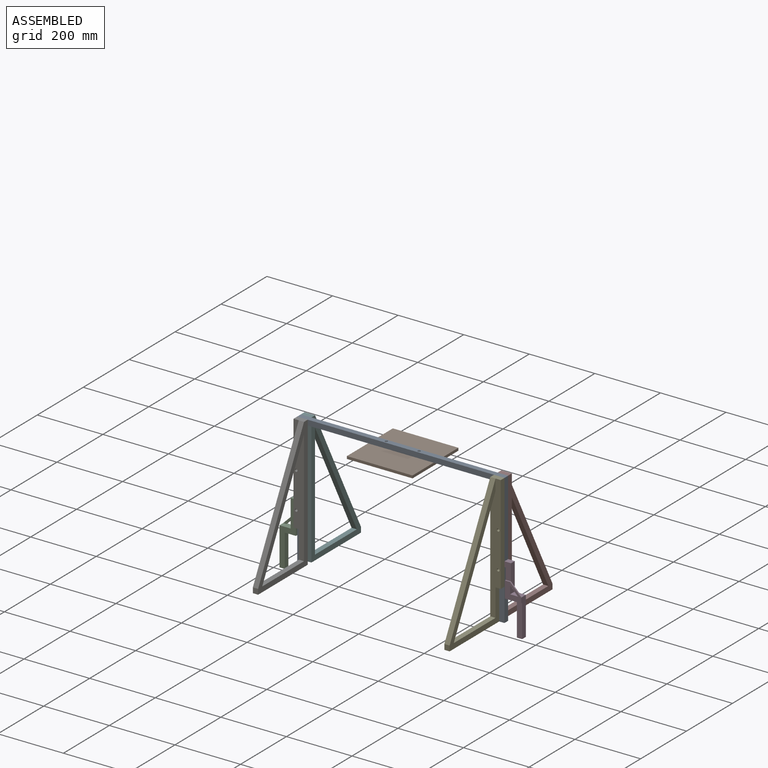
[diagram: assembled view]
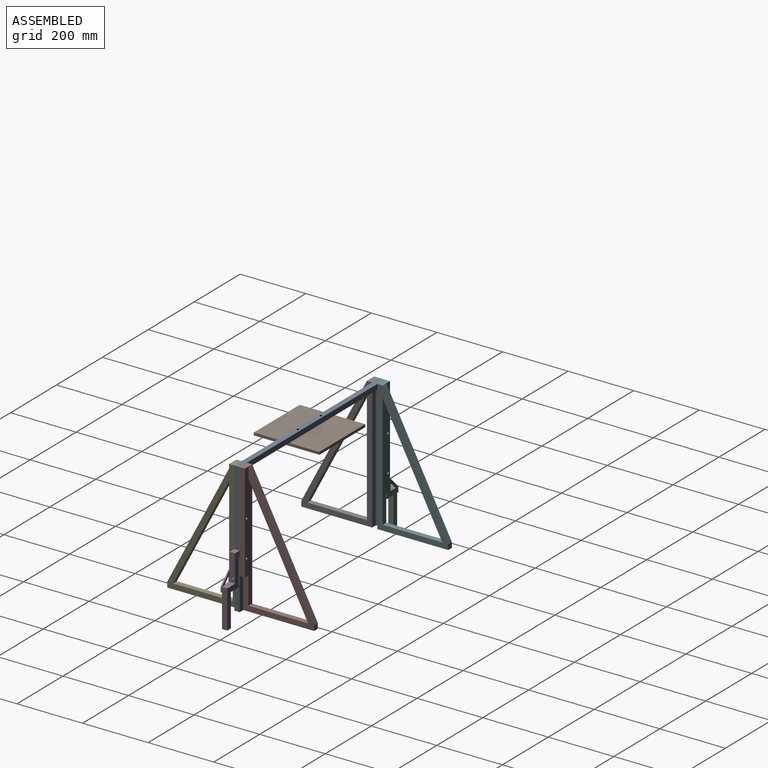
[diagram: assembled view, second angle]
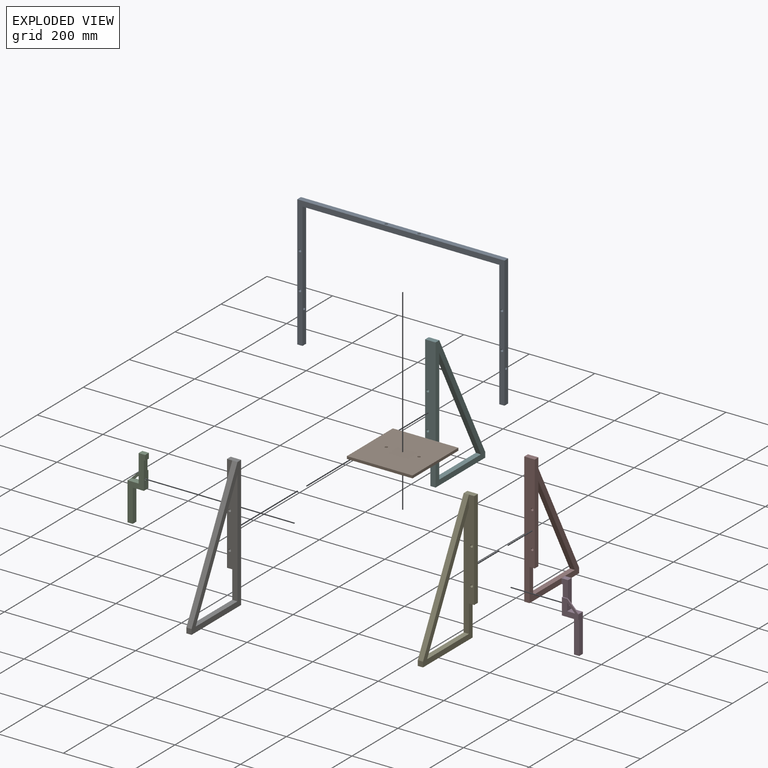
[diagram: exploded view]
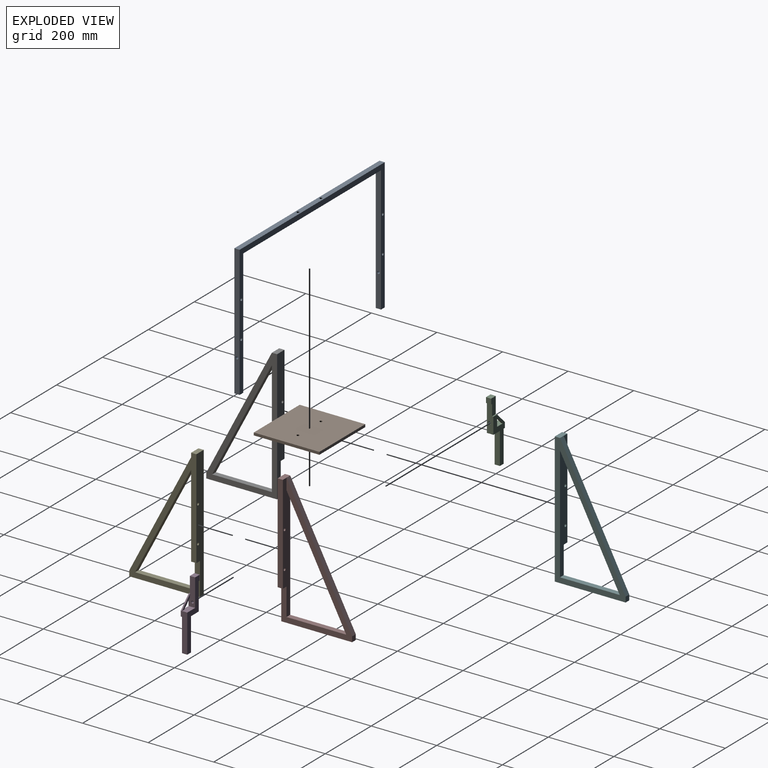
[diagram: exploded view, second angle]
FCSTD DOCUMENT  (FreeCAD 1.0R39285 (Git))
Label: Base-Frame-Assembly
License: All rights reserved
objects: App::Link×8, App::FeaturePython×8, Assembly::JointGroup×1, Assembly::AssemblyObject×1, TechDraw::DrawProjGroupItem×1
EXTERNAL_REF file=Supporting-Frame.FCStd obj=Body
EXTERNAL_REF file=Supporting-Plate.FCStd obj=Body
EXTERNAL_REF file=Supporting-Clamp.FCStd obj=Body
EXTERNAL_REF file=Supporting-A-Subframe.FCStd obj=Body
EXTERNAL_REF file=Supporting-A-Subframe-Flipped.FCStd obj=Body

FEATURE [App::Link] Body
  LinkedObject = -> <external Supporting-Frame.FCStd>#Body
FEATURE [App::FeaturePython] GroundedJoint  # Assembly grounded joint (typed FeaturePython)
  ObjectToGround = -> Body
FEATURE [App::Link] Body001
  LinkPlacement = pos=(0,-8,276) rot=(0,0,1;0rad)
  LinkedObject = -> <external Supporting-Plate.FCStd>#Body
  Placement = pos=(0,-8,276) rot=(0,0,1;0rad)
FEATURE [App::Link] Body003
  LinkPlacement = pos=(-320,-16,-30) rot=(0,0,1;3.14159rad)
  LinkedObject = -> <external Supporting-Clamp.FCStd>#Body
  Placement = pos=(-320,-16,-30) rot=(0,0,1;3.14159rad)
FEATURE [App::Link] Body004
  LinkPlacement = pos=(320,2.8e-15,-30) rot=(0,0,1;0rad)
  LinkedObject = -> <external Supporting-Clamp.FCStd>#Body
  Placement = pos=(320,2.8e-15,-30) rot=(0,0,1;0rad)
FEATURE [App::Link] Body005
  LinkPlacement = pos=(300,-16,9.6e-15) rot=(0,0,1;3.14159rad)
  LinkedObject = -> <external Supporting-A-Subframe.FCStd>#Body
  Placement = pos=(300,-16,9.6e-15) rot=(0,0,1;3.14159rad)
FEATURE [App::Link] Body006
  LinkPlacement = pos=(-300,2.51e-14,-3.59e-14) rot=(0,0,1;0rad)
  LinkedObject = -> <external Supporting-A-Subframe.FCStd>#Body
  Placement = pos=(-300,2.51e-14,-3.59e-14) rot=(0,0,1;0rad)
FEATURE [App::FeaturePython] Joint  label="Fixed"  # Assembly joint (typed FeaturePython)
  Activated = true
  AngleMax = 0
  AngleMin = 0
  Detach1 = false
  Detach2 = false
  Distance = 0
  Distance2 = 0
  EnableAngleMax = false
  EnableAngleMin = false
  EnableLengthMax = false
  EnableLengthMin = false
  JointType = 0 (Fixed)
  LengthMax = 0
  LengthMin = 0
  Offset2 = pos=(0,0,0) rot=(0,0,1;3.14159rad)
  Placement1 = pos=(-50,0,8) rot=(0,0,1;0rad)
  Placement2 = pos=(-50,-8,284) rot=(0,0,1;0rad)
  Reference1 = -> Assembly [Body001.Edge17,Body001.Edge17]
  Reference2 = -> Assembly [Body.Edge33,Body.Edge33]
FEATURE [App::FeaturePython] Joint001  label="Fixed001"  # Assembly joint (typed FeaturePython)
  Activated = true
  AngleMax = 0
  AngleMin = 0
  Detach1 = false
  Detach2 = false
  Distance = 0
  Distance2 = 0
  EnableAngleMax = false
  EnableAngleMin = false
  EnableLengthMax = false
  EnableLengthMin = false
  JointType = 0 (Fixed)
  LengthMax = 0
  LengthMin = 0
  Offset2 = pos=(0,0,-4) rot=(0,0,1;3.14159rad)
  Placement1 = pos=(316,-8,1.403e-13) rot=(0.707107,0,-0.707107;3.14159rad)
  Placement2 = pos=(-4,-8,30) rot=(0,-1,0;4.71239rad)
  Reference1 = -> Assembly [Body.Edge12,Body.Edge12]
  Reference2 = -> Assembly [Body004.Edge23,Body004.Edge23]
FEATURE [App::FeaturePython] Joint002  label="Fixed002"  # Assembly joint (typed FeaturePython)
  Activated = true
  AngleMax = 0
  AngleMin = 0
  Detach1 = false
  Detach2 = false
  Distance = 0
  Distance2 = 0
  EnableAngleMax = false
  EnableAngleMin = false
  EnableLengthMax = false
  EnableLengthMin = false
  JointType = 0 (Fixed)
  LengthMax = 0
  LengthMin = 0
  Offset2 = pos=(0,0,-4) rot=(0,0,1;3.14159rad)
  Placement1 = pos=(-316,-8,-1.8e-15) rot=(0.707107,0,-0.707107;3.14159rad)
  Placement2 = pos=(-4,-8,30) rot=(0,1,0;1.5708rad)
  Reference1 = -> Assembly [Body.Edge41,Body.Edge41]
  Reference2 = -> Assembly [Body003.Edge23,Body003.Edge23]
FEATURE [App::FeaturePython] Joint003  label="Fixed003"  # Assembly joint (typed FeaturePython)
  Activated = true
  AngleMax = 0
  AngleMin = 0
  Detach1 = false
  Detach2 = false
  Distance = 0
  Distance2 = 0
  EnableAngleMax = false
  EnableAngleMin = false
  EnableLengthMax = false
  EnableLengthMin = false
  JointType = 0 (Fixed)
  LengthMax = 0
  LengthMin = 0
  Offset2 = pos=(0,0,0) rot=(0,0,-1;1.5708rad)
  Placement1 = pos=(308,-16,160) rot=(-1,0,0;1.5708rad)
  Placement2 = pos=(-8,5.15e-14,160) rot=(0,-0.707107,-0.707107;3.14159rad)
  Reference1 = -> Assembly [Body.Edge30,Body.Edge30]
  Reference2 = -> Assembly [Body005.Edge25,Body005.Edge25]
FEATURE [App::FeaturePython] Joint004  label="Fixed004"  # Assembly joint (typed FeaturePython)
  Activated = true
  AngleMax = 0
  AngleMin = 0
  Detach1 = false
  Detach2 = false
  Distance = 0
  Distance2 = 0
  EnableAngleMax = false
  EnableAngleMin = false
  EnableLengthMax = false
  EnableLengthMin = false
  JointType = 0 (Fixed)
  LengthMax = 0
  LengthMin = 0
  Offset2 = pos=(0,0,0) rot=(0,0,1;1.5708rad)
  Placement1 = pos=(-308,4.3e-15,160) rot=(-1,0,0;1.5708rad)
  Placement2 = pos=(-8,5.15e-14,160) rot=(1,0,0;4.71239rad)
  Reference1 = -> Assembly [Body.Edge19,Body.Edge19]
  Reference2 = -> Assembly [Body006.Edge25,Body006.Edge25]
FEATURE [App::Link] Body007
  LinkPlacement = pos=(-284,-16,-2.04e-14) rot=(0,0,1;3.14159rad)
  LinkedObject = -> <external Supporting-A-Subframe-Flipped.FCStd>#Body
  Placement = pos=(-284,-16,-2.04e-14) rot=(0,0,1;3.14159rad)
FEATURE [App::Link] Body008
  LinkPlacement = pos=(284,8.2e-15,-1.02e-14) rot=(0,0,1;0rad)
  LinkedObject = -> <external Supporting-A-Subframe-Flipped.FCStd>#Body
  Placement = pos=(284,8.2e-15,-1.02e-14) rot=(0,0,1;0rad)
FEATURE [App::FeaturePython] Joint005  label="Fixed005"  # Assembly joint (typed FeaturePython)
  Activated = true
  AngleMax = 0
  AngleMin = 0
  Detach1 = false
  Detach2 = false
  Distance = 0
  Distance2 = 0
  EnableAngleMax = false
  EnableAngleMin = false
  EnableLengthMax = false
  EnableLengthMin = false
  JointType = 0 (Fixed)
  LengthMax = 0
  LengthMin = 0
  Offset2 = pos=(0,0,0) rot=(0,0,1;1.5708rad)
  Placement1 = pos=(24,0,50) rot=(0.57735,0.57735,-0.57735;2.0944rad)
  Placement2 = pos=(-308,-16,50) rot=(-0.57735,0.57735,0.57735;2.0944rad)
  Reference1 = -> Assembly [Body007.Edge26,Body007.Edge26]
  Reference2 = -> Assembly [Body.Edge27,Body.Edge27]
FEATURE [App::FeaturePython] Joint006  label="Fixed006"  # Assembly joint (typed FeaturePython)
  Activated = true
  AngleMax = 0
  AngleMin = 0
  Detach1 = false
  Detach2 = false
  Distance = 0
  Distance2 = 0
  EnableAngleMax = false
  EnableAngleMin = false
  EnableLengthMax = false
  EnableLengthMin = false
  JointType = 0 (Fixed)
  LengthMax = 0
  LengthMin = 0
  Offset2 = pos=(0,0,0) rot=(0,0,1;1.5708rad)
  Placement1 = pos=(24,0,50) rot=(0.57735,0.57735,-0.57735;2.0944rad)
  Placement2 = pos=(308,2.87e-14,50) rot=(-0.57735,0.57735,0.57735;2.0944rad)
  Reference1 = -> Assembly [Body008.Edge26,Body008.Edge26]
  Reference2 = -> Assembly [Body.Edge20,Body.Edge20]
FEATURE [Assembly::JointGroup] Joints
  Group = -> [GroundedJoint,Joint,Joint001,Joint002,Joint003,Joint004,Joint005,Joint006]
FEATURE [Assembly::AssemblyObject] Assembly
  Group = -> [Joints,Body,GroundedJoint,Body001,Body003,Body004,Body005,Body006,Joint,Joint001,Joint002,Joint003,Joint004,Body007,Body008,Joint005,Joint006]
  Origin = -> Origin
  Type = Assembly
FEATURE [TechDraw::DrawProjGroupItem] ProjItem  label="FrontBottomLeft"
  CoarseView = false
  Direction = (0.57735,0.57735,-0.57735)
  Focus = 100
  HardHidden = false
  IsoCount = 0
  IsoHidden = false
  IsoVisible = false
  LockPosition = false
  Perspective = false
  Rotation = 0
  RotationVector = (1,0,0)
  ScaleType = 0
  ScrubCount = 1
  SeamHidden = false
  SeamVisible = false
  SmoothHidden = false
  SmoothVisible = true
  Source = -> [Assembly]
  Type = 8
  X = 331.13
  XDirection = (-0.707107,0.707107,0)
  Y = 76.0632

RESOLVED EXTERNAL PARTS (link-assembly join: the EXTERNAL_REF files above that resolve inside this repo's crawl, each included once):
---- part Supporting-A-Subframe-Flipped.FCStd = doc fcstd_35f09016f2fb ----
FCSTD DOCUMENT  (FreeCAD 1.0R39285 (Git))
Label: Supporting-A-Subframe-Flipped
License: All rights reserved
objects: Sketcher::SketchObject×3, PartDesign::Pad×2, PartDesign::Pocket×1, PartDesign::Body×1
note: 16 computed .brp shape members not serialized (recipe doc carries the construction recipe); baked Part::Feature solids carry a one-line shape summary decoded from their .brp

FEATURE [Sketcher::SketchObject] Sketch
  ArcFitTolerance = 1e-06
  AttachmentSupport = -> [YZ_Plane]
  FullyConstrained = true
  MakeInternals = false
  MapMode = 5
  Placement = pos=(0,0,0) rot=(0.57735,0.57735,0.57735;2.0944rad)
  sketch-geometry (12):
    g0: LineSegment StartX=0 StartY=0 StartZ=0 EndX=0 EndY=-100 EndZ=0
    g1: LineSegment StartX=0 StartY=-100 StartZ=0 EndX=16 EndY=-100 EndZ=0
    g2: LineSegment StartX=16 StartY=-100 StartZ=0 EndX=216 EndY=-100 EndZ=0
    g3: LineSegment StartX=216 StartY=-100 StartZ=0 EndX=216 EndY=-84 EndZ=0
    g4: LineSegment StartX=0 StartY=0 StartZ=0 EndX=0 EndY=300 EndZ=0
    g5: LineSegment StartX=0 StartY=300 StartZ=0 EndX=16 EndY=300 EndZ=0
    g6: LineSegment StartX=16 StartY=300 StartZ=0 EndX=216 EndY=-84 EndZ=0
    g7: LineSegment [constr] StartX=16 StartY=300 StartZ=0 EndX=16 EndY=-100 EndZ=0
    g8: LineSegment [constr] StartX=216 StartY=-84 StartZ=0 EndX=0 EndY=-84 EndZ=0
    g9: LineSegment StartX=16 StartY=265.363 StartZ=0 EndX=197.96 EndY=-84 EndZ=0
    g10: LineSegment StartX=16 StartY=265.363 StartZ=0 EndX=16 EndY=-84 EndZ=0
    g11: LineSegment StartX=16 StartY=-84 StartZ=0 EndX=197.96 EndY=-84 EndZ=0
  constraints (34):
    c: Distance(g0) = 100
    c: Coincident(g0,g-1)
    c: PointOnObject(g0,g-2)
    c: Distance(g1) = 16
    c: Coincident(g1,g0)
    c: Horizontal(g1)
    c: Distance(g2) = 200
    c: Coincident(g2,g1)
    c: Horizontal(g2)
    c: Distance(g3) = 16
    c: Coincident(g3,g2)
    c: Vertical(g3)
    c: Distance(g4) = 300
    c: Coincident(g4,g0)
    c: PointOnObject(g4,g-2)
    c: Distance(g5) = 16
    c: Coincident(g5,g4)
    c: Horizontal(g5)
    c: Coincident(g6,g5)
    c: Coincident(g6,g3)
    c: Coincident(g7,g5)
    c: Coincident(g7,g1)
    c: Coincident(g8,g3)
    c: Horizontal(g8)
    c: PointOnObject(g8,g0)
    c: Parallel(g9,g6)
    c: PointOnObject(g9,g7)
    c: PointOnObject(g9,g8)
    c: Distance(g6,g9) = 16
    c: Coincident(g10,g9)
    c: PointOnObject(g10,g8)
    c: Vertical(g10)
    c: Coincident(g11,g10)
    c: Coincident(g11,g9)
FEATURE [PartDesign::Pad] Pad
  Direction = (1,0,0)
  Length = 16
  Length2 = 10
  Placement = pos=(0,0,0) rot=(1,1,1;2.0944rad)
  Profile = -> Sketch
  ReferenceAxis = -> Sketch [N_Axis]
  Refine = true
  Suppressed = false
  Type = 0
FEATURE [Sketcher::SketchObject] Sketch001
  ArcFitTolerance = 1e-06
  AttachmentSupport = -> [Pad]
  FullyConstrained = true
  MakeInternals = false
  MapMode = 5
  Placement = pos=(-2.93e-14,0,0) rot=(0.57735,0.57735,-0.57735;4.18879rad)
  sketch-geometry (4):
    g0: LineSegment StartX=0 StartY=0 StartZ=0 EndX=16 EndY=0 EndZ=0
    g1: LineSegment StartX=16 StartY=0 StartZ=0 EndX=16 EndY=-300 EndZ=0
    g2: LineSegment StartX=16 StartY=-300 StartZ=0 EndX=0 EndY=-300 EndZ=0
    g3: LineSegment StartX=0 StartY=-300 StartZ=0 EndX=0 EndY=0 EndZ=0
  constraints (11):
    c: Distance(g0) = 16
    c: Coincident(g0,g-1)
    c: PointOnObject(g0,g-1)
    c: Distance(g1) = 300
    c: Coincident(g1,g0)
    c: Vertical(g1)
    c: Coincident(g2,g1)
    c: PointOnObject(g2,g-2)
    c: Horizontal(g2)
    c: Coincident(g3,g2)
    c: Coincident(g3,g0)
FEATURE [PartDesign::Pad] Pad001
  BaseFeature = -> Pad
  Direction = (-1,0,0)
  Length = 32
  Length2 = 10
  Placement = pos=(0,0,0) rot=(1,1,1;2.0944rad)
  Profile = -> Sketch001
  ReferenceAxis = -> Sketch001 [N_Axis]
  Refine = true
  Reversed = true
  Suppressed = false
  Type = 0
FEATURE [Sketcher::SketchObject] Sketch003
  ArcFitTolerance = 1e-06
  AttachmentSupport = -> [Pad001]
  FullyConstrained = true
  MakeInternals = false
  MapMode = 5
  Placement = pos=(0,1.09e-14,0) rot=(0.57735,0.57735,-0.57735;2.0944rad)
  sketch-geometry (6):
    g0: LineSegment [constr] StartX=0 StartY=0 StartZ=0 EndX=-50 EndY=0 EndZ=0
    g1: LineSegment [constr] StartX=-50 StartY=0 StartZ=0 EndX=-50 EndY=24 EndZ=0
    g2: LineSegment [constr] StartX=-50 StartY=0 StartZ=0 EndX=-160 EndY=0 EndZ=0
    g3: LineSegment [constr] StartX=-160 StartY=0 StartZ=0 EndX=-160 EndY=24 EndZ=0
    g4: Circle CenterX=-160 CenterY=24 CenterZ=0 NormalX=0 NormalY=0 NormalZ=1 AngleXU=0 Radius=4
    g5: Circle CenterX=-50 CenterY=24 CenterZ=0 NormalX=0 NormalY=0 NormalZ=1 AngleXU=0 Radius=4
  constraints (16):
    c: Distance(g0) = 50
    c: Coincident(g0,g-1)
    c: PointOnObject(g0,g-1)
    c: Distance(g1) = 24
    c: Coincident(g1,g0)
    c: Vertical(g1)
    c: Distance(g2) = 110
    c: Coincident(g2,g0)
    c: Horizontal(g2)
    c: Distance(g3) = 24
    c: Coincident(g3,g2)
    c: Vertical(g3)
    c: Diameter(g4) = 8
    c: Coincident(g4,g3)
    c: Diameter(g5) = 8
    c: Coincident(g5,g1)
FEATURE [PartDesign::Pocket] Pocket
  BaseFeature = -> Pad001
  Direction = (0,1,0)
  Length = 5
  Length2 = 5
  Placement = pos=(0,0,0) rot=(1,1,1;2.0944rad)
  Profile = -> Sketch003
  ReferenceAxis = -> Sketch003 [N_Axis]
  Refine = true
  Suppressed = false
  Type = 1
FEATURE [PartDesign::Body] Body
  AllowCompound = false
  Group = -> [Sketch,Pad,Sketch001,Pad001,Sketch003,Pocket]
  Origin = -> Origin
  Tip = -> Pocket
---- part Supporting-A-Subframe.FCStd = doc fcstd_8461dddf8832 ----
FCSTD DOCUMENT  (FreeCAD 1.0R39285 (Git))
Label: Supporting-A-Subframe
License: All rights reserved
objects: Sketcher::SketchObject×3, PartDesign::Pad×2, PartDesign::Pocket×1, PartDesign::Body×1
note: 16 computed .brp shape members not serialized (recipe doc carries the construction recipe); baked Part::Feature solids carry a one-line shape summary decoded from their .brp

FEATURE [Sketcher::SketchObject] Sketch
  ArcFitTolerance = 1e-06
  AttachmentSupport = -> [YZ_Plane]
  FullyConstrained = true
  MakeInternals = false
  MapMode = 5
  Placement = pos=(0,0,0) rot=(0.57735,0.57735,0.57735;2.0944rad)
  sketch-geometry (12):
    g0: LineSegment StartX=0 StartY=0 StartZ=0 EndX=0 EndY=-100 EndZ=0
    g1: LineSegment StartX=0 StartY=-100 StartZ=0 EndX=16 EndY=-100 EndZ=0
    g2: LineSegment StartX=16 StartY=-100 StartZ=0 EndX=216 EndY=-100 EndZ=0
    g3: LineSegment StartX=216 StartY=-100 StartZ=0 EndX=216 EndY=-84 EndZ=0
    g4: LineSegment StartX=0 StartY=0 StartZ=0 EndX=0 EndY=300 EndZ=0
    g5: LineSegment StartX=0 StartY=300 StartZ=0 EndX=16 EndY=300 EndZ=0
    g6: LineSegment StartX=16 StartY=300 StartZ=0 EndX=216 EndY=-84 EndZ=0
    g7: LineSegment [constr] StartX=16 StartY=300 StartZ=0 EndX=16 EndY=-100 EndZ=0
    g8: LineSegment [constr] StartX=216 StartY=-84 StartZ=0 EndX=0 EndY=-84 EndZ=0
    g9: LineSegment StartX=16 StartY=265.363 StartZ=0 EndX=197.96 EndY=-84 EndZ=0
    g10: LineSegment StartX=16 StartY=265.363 StartZ=0 EndX=16 EndY=-84 EndZ=0
    g11: LineSegment StartX=16 StartY=-84 StartZ=0 EndX=197.96 EndY=-84 EndZ=0
  constraints (34):
    c: Distance(g0) = 100
    c: Coincident(g0,g-1)
    c: PointOnObject(g0,g-2)
    c: Distance(g1) = 16
    c: Coincident(g1,g0)
    c: Horizontal(g1)
    c: Distance(g2) = 200
    c: Coincident(g2,g1)
    c: Horizontal(g2)
    c: Distance(g3) = 16
    c: Coincident(g3,g2)
    c: Vertical(g3)
    c: Distance(g4) = 300
    c: Coincident(g4,g0)
    c: PointOnObject(g4,g-2)
    c: Distance(g5) = 16
    c: Coincident(g5,g4)
    c: Horizontal(g5)
    c: Coincident(g6,g5)
    c: Coincident(g6,g3)
    c: Coincident(g7,g5)
    c: Coincident(g7,g1)
    c: Coincident(g8,g3)
    c: Horizontal(g8)
    c: PointOnObject(g8,g0)
    c: Parallel(g9,g6)
    c: PointOnObject(g9,g7)
    c: PointOnObject(g9,g8)
    c: Distance(g6,g9) = 16
    c: Coincident(g10,g9)
    c: PointOnObject(g10,g8)
    c: Vertical(g10)
    c: Coincident(g11,g10)
    c: Coincident(g11,g9)
FEATURE [PartDesign::Pad] Pad
  Direction = (1,0,0)
  Length = 16
  Length2 = 10
  Placement = pos=(0,0,0) rot=(1,1,1;2.0944rad)
  Profile = -> Sketch
  ReferenceAxis = -> Sketch [N_Axis]
  Refine = true
  Suppressed = false
  Type = 0
FEATURE [Sketcher::SketchObject] Sketch001
  ArcFitTolerance = 1e-06
  AttachmentSupport = -> [Pad]
  FullyConstrained = true
  MakeInternals = false
  MapMode = 5
  Placement = pos=(-2.93e-14,0,0) rot=(0.57735,0.57735,-0.57735;4.18879rad)
  sketch-geometry (4):
    g0: LineSegment StartX=0 StartY=0 StartZ=0 EndX=16 EndY=0 EndZ=0
    g1: LineSegment StartX=16 StartY=0 StartZ=0 EndX=16 EndY=-300 EndZ=0
    g2: LineSegment StartX=16 StartY=-300 StartZ=0 EndX=0 EndY=-300 EndZ=0
    g3: LineSegment StartX=0 StartY=-300 StartZ=0 EndX=0 EndY=0 EndZ=0
  constraints (11):
    c: Distance(g0) = 16
    c: Coincident(g0,g-1)
    c: PointOnObject(g0,g-1)
    c: Distance(g1) = 300
    c: Coincident(g1,g0)
    c: Vertical(g1)
    c: Coincident(g2,g1)
    c: PointOnObject(g2,g-2)
    c: Horizontal(g2)
    c: Coincident(g3,g2)
    c: Coincident(g3,g0)
FEATURE [PartDesign::Pad] Pad001
  BaseFeature = -> Pad
  Direction = (-1,0,0)
  Length = 16
  Length2 = 10
  Placement = pos=(0,0,0) rot=(1,1,1;2.0944rad)
  Profile = -> Sketch001
  ReferenceAxis = -> Sketch001 [N_Axis]
  Refine = true
  Suppressed = false
  Type = 0
FEATURE [Sketcher::SketchObject] Sketch002
  ArcFitTolerance = 1e-06
  AttachmentSupport = -> [Pad001]
  FullyConstrained = true
  MakeInternals = false
  MapMode = 5
  Placement = pos=(0,16,-1.8e-15) rot=(0.57735,0.57735,0.57735;4.18879rad)
  sketch-geometry (5):
    g0: LineSegment [constr] StartX=0 StartY=0 StartZ=0 EndX=0 EndY=-8 EndZ=0
    g1: LineSegment [constr] StartX=0 StartY=-8 StartZ=0 EndX=50 EndY=-8 EndZ=0
    g2: Circle CenterX=50 CenterY=-8 CenterZ=0 NormalX=0 NormalY=0 NormalZ=1 AngleXU=0 Radius=4
    g3: LineSegment [constr] StartX=50 StartY=-8 StartZ=0 EndX=160 EndY=-8 EndZ=0
    g4: Circle CenterX=160 CenterY=-8 CenterZ=0 NormalX=0 NormalY=0 NormalZ=1 AngleXU=0 Radius=4
  constraints (13):
    c: Distance(g0) = 8
    c: Coincident(g0,g-1)
    c: PointOnObject(g0,g-2)
    c: Distance(g1) = 50
    c: Coincident(g1,g0)
    c: Horizontal(g1)
    c: Diameter(g2) = 8
    c: Coincident(g2,g1)
    c: Distance(g3) = 110
    c: Coincident(g3,g1)
    c: Horizontal(g3)
    c: Diameter(g4) = 8
    c: Coincident(g4,g3)
FEATURE [PartDesign::Pocket] Pocket
  BaseFeature = -> Pad001
  Direction = (0,-1,0)
  Length = 5
  Length2 = 5
  Placement = pos=(0,0,0) rot=(1,1,1;2.0944rad)
  Profile = -> Sketch002
  ReferenceAxis = -> Sketch002 [N_Axis]
  Refine = true
  Suppressed = false
  Type = 1
FEATURE [PartDesign::Body] Body
  AllowCompound = false
  Group = -> [Sketch,Pad,Sketch001,Pad001,Sketch002,Pocket]
  Origin = -> Origin
  Tip = -> Pocket
---- part Supporting-Clamp.FCStd = doc fcstd_5fa07ea9d87e ----
FCSTD DOCUMENT  (FreeCAD 1.0R39285 (Git))
Label: Supporting-Clamp
License: All rights reserved
objects: Sketcher::SketchObject×4, PartDesign::Pad×3, PartDesign::Pocket×1, PartDesign::Body×1
note: 21 computed .brp shape members not serialized (recipe doc carries the construction recipe); baked Part::Feature solids carry a one-line shape summary decoded from their .brp

FEATURE [Sketcher::SketchObject] Sketch
  ArcFitTolerance = 1e-06
  AttachmentSupport = -> [XZ_Plane]
  FullyConstrained = true
  MakeInternals = false
  MapMode = 5
  Placement = pos=(0,0,0) rot=(1,0,0;1.5708rad)
  sketch-geometry (8):
    g0: LineSegment StartX=0 StartY=0 StartZ=0 EndX=0 EndY=100 EndZ=0
    g1: LineSegment StartX=0 StartY=100 StartZ=0 EndX=16 EndY=100 EndZ=0
    g2: LineSegment StartX=16 StartY=100 StartZ=0 EndX=16 EndY=16 EndZ=0
    g3: LineSegment StartX=16 StartY=16 StartZ=0 EndX=50 EndY=16 EndZ=0
    g4: LineSegment StartX=50 StartY=16 StartZ=0 EndX=50 EndY=-100 EndZ=0
    g5: LineSegment StartX=50 StartY=-100 StartZ=0 EndX=34 EndY=-100 EndZ=0
    g6: LineSegment StartX=34 StartY=-100 StartZ=0 EndX=34 EndY=0 EndZ=0
    g7: LineSegment StartX=34 StartY=0 StartZ=0 EndX=0 EndY=0 EndZ=0
  constraints (23):
    c: Distance(g0) = 100
    c: Coincident(g0,g-1)
    c: PointOnObject(g0,g-2)
    c: Distance(g1) = 16
    c: Coincident(g1,g0)
    c: Horizontal(g1)
    c: Distance(g2) = 84
    c: Coincident(g2,g1)
    c: Vertical(g2)
    c: Distance(g3) = 34
    c: Coincident(g3,g2)
    c: Horizontal(g3)
    c: Distance(g4) = 116
    c: Coincident(g4,g3)
    c: Vertical(g4)
    c: Distance(g5) = 16
    c: Coincident(g5,g4)
    c: Horizontal(g5)
    c: Coincident(g6,g5)
    c: PointOnObject(g6,g-1)
    c: Vertical(g6)
    c: Coincident(g7,g6)
    c: Coincident(g7,g0)
FEATURE [PartDesign::Pad] Pad
  Direction = (0,-1,2e-16)
  Length = 16
  Length2 = 10
  Placement = pos=(0,0,0) rot=(1,0,0;1.5708rad)
  Profile = -> Sketch
  ReferenceAxis = -> Sketch [N_Axis]
  Refine = true
  Suppressed = false
  Type = 0
FEATURE [Sketcher::SketchObject] Sketch001
  ArcFitTolerance = 1e-06
  AttachmentSupport = -> [Pad]
  FullyConstrained = true
  MakeInternals = false
  MapMode = 5
  Placement = pos=(0,-16,3.6e-15) rot=(1,0,0;1.5708rad)
  sketch-geometry (9):
    g0: LineSegment StartX=0 StartY=0 StartZ=0 EndX=50 EndY=0 EndZ=0
    g1: LineSegment StartX=50 StartY=0 StartZ=0 EndX=50 EndY=16 EndZ=0
    g2: LineSegment StartX=0 StartY=0 StartZ=0 EndX=0 EndY=50 EndZ=0
    g3: LineSegment StartX=0 StartY=50 StartZ=0 EndX=16 EndY=50 EndZ=0
    g4: LineSegment StartX=16 StartY=50 StartZ=0 EndX=50 EndY=16 EndZ=0
    g5: LineSegment [constr] StartX=16 StartY=50 StartZ=0 EndX=16 EndY=16 EndZ=0
    g6: LineSegment StartX=16 StartY=16 StartZ=0 EndX=40 EndY=16 EndZ=0
    g7: LineSegment StartX=40 StartY=16 StartZ=0 EndX=16 EndY=40 EndZ=0
    g8: LineSegment StartX=16 StartY=40 StartZ=0 EndX=16 EndY=16 EndZ=0
  constraints (25):
    c: Distance(g0) = 50
    c: Coincident(g0,g-1)
    c: PointOnObject(g0,g-1)
    c: Distance(g1) = 16
    c: Coincident(g1,g0)
    c: Vertical(g1)
    c: Distance(g2) = 50
    c: Coincident(g2,g0)
    c: PointOnObject(g2,g-2)
    c: Distance(g3) = 16
    c: Coincident(g3,g2)
    c: Horizontal(g3)
    c: Coincident(g4,g3)
    c: Coincident(g4,g1)
    c: Distance(g5) = 34
    c: Coincident(g5,g3)
    c: Vertical(g5)
    c: Distance(g6) = 24
    c: Coincident(g6,g5)
    c: Horizontal(g6)
    c: Coincident(g7,g6)
    c: Parallel(g4,g7)
    c: PointOnObject(g7,g5)
    c: Coincident(g8,g7)
    c: Coincident(g8,g5)
FEATURE [PartDesign::Pad] Pad001
  BaseFeature = -> Pad
  Direction = (0,-1,2e-16)
  Length = 4
  Length2 = 10
  Placement = pos=(0,0,0) rot=(1,0,0;1.5708rad)
  Profile = -> Sketch001
  ReferenceAxis = -> Sketch001 [N_Axis]
  Refine = true
  Suppressed = false
  Type = 0
FEATURE [Sketcher::SketchObject] Sketch002
  ArcFitTolerance = 1e-06
  AttachmentSupport = -> [Pad001]
  FullyConstrained = true
  MakeInternals = false
  MapMode = 5
  Placement = pos=(16,0,0) rot=(0.707107,0,0.707107;3.14159rad)
  sketch-geometry (3):
    g0: LineSegment [constr] StartX=0 StartY=0 StartZ=0 EndX=0 EndY=8 EndZ=0
    g1: LineSegment [constr] StartX=0 StartY=8 StartZ=0 EndX=30 EndY=8 EndZ=0
    g2: Circle CenterX=30 CenterY=8 CenterZ=0 NormalX=0 NormalY=0 NormalZ=1 AngleXU=0 Radius=4
  constraints (8):
    c: Distance(g0) = 8
    c: Coincident(g0,g-1)
    c: PointOnObject(g0,g-2)
    c: Distance(g1) = 30
    c: Coincident(g1,g0)
    c: Horizontal(g1)
    c: Diameter(g2) = 8
    c: Coincident(g2,g1)
FEATURE [PartDesign::Pocket] Pocket
  BaseFeature = -> Pad001
  Direction = (-1,0,2e-16)
  Length = 5
  Length2 = 5
  Placement = pos=(0,0,0) rot=(1,0,0;1.5708rad)
  Profile = -> Sketch002
  ReferenceAxis = -> Sketch002 [N_Axis]
  Refine = true
  Suppressed = false
  Type = 1
FEATURE [Sketcher::SketchObject] Sketch003
  ArcFitTolerance = 1e-06
  AttachmentSupport = -> [Pocket]
  FullyConstrained = true
  MakeInternals = false
  MapMode = 5
  Placement = pos=(0,0,0) rot=(0.707107,0,-0.707107;3.14159rad)
  sketch-geometry (5):
    g0: LineSegment [constr] StartX=0 StartY=0 StartZ=0 EndX=-84 EndY=0 EndZ=0
    g1: LineSegment StartX=-84 StartY=0 StartZ=0 EndX=-84 EndY=16 EndZ=0
    g2: LineSegment StartX=-84 StartY=16 StartZ=0 EndX=-100 EndY=16 EndZ=0
    g3: LineSegment StartX=-100 StartY=16 StartZ=0 EndX=-100 EndY=0 EndZ=0
    g4: LineSegment StartX=-100 StartY=0 StartZ=0 EndX=-84 EndY=0 EndZ=0
  constraints (14):
    c: Distance(g0) = 84
    c: Coincident(g0,g-1)
    c: Horizontal(g0)
    c: Coincident(g1,g2)
    c: Coincident(g2,g3)
    c: Coincident(g3,g4)
    c: Coincident(g4,g1)
    c: Vertical(g1)
    c: Vertical(g3)
    c: Horizontal(g2)
    c: Horizontal(g4)
    c: Distance(g1,g3) = 16
    c: Distance(g2,g4) = 16
    c: Coincident(g1,g0)
FEATURE [PartDesign::Pad] Pad002
  BaseFeature = -> Pocket
  Direction = (-1,0,-2e-16)
  Length = 4
  Length2 = 10
  Placement = pos=(0,0,0) rot=(1,0,0;1.5708rad)
  Profile = -> Sketch003
  ReferenceAxis = -> Sketch003 [N_Axis]
  Refine = true
  Suppressed = false
  Type = 0
FEATURE [PartDesign::Body] Body
  AllowCompound = false
  Group = -> [Sketch,Pad,Sketch001,Pad001,Sketch002,Pocket,Sketch003,Pad002]
  Origin = -> Origin
  Tip = -> Pad002
---- part Supporting-Frame.FCStd = doc fcstd_a9eaec31ddf0 ----
FCSTD DOCUMENT  (FreeCAD 1.0R39285 (Git))
Label: Supporting-Frame
License: All rights reserved
objects: Sketcher::SketchObject×5, PartDesign::Pocket×4, PartDesign::Pad×1, PartDesign::Body×1
note: 26 computed .brp shape members not serialized (recipe doc carries the construction recipe); baked Part::Feature solids carry a one-line shape summary decoded from their .brp

FEATURE [Sketcher::SketchObject] Sketch001
  ArcFitTolerance = 1e-06
  AttachmentSupport = -> [XZ_Plane]
  FullyConstrained = true
  MakeInternals = false
  MapMode = 5
  Placement = pos=(0,0,0) rot=(1,0,0;1.5708rad)
  sketch-geometry (12):
    g0: LineSegment [constr] StartX=0 StartY=0 StartZ=0 EndX=-300 EndY=0 EndZ=0
    g1: LineSegment [constr] StartX=0 StartY=0 StartZ=0 EndX=300 EndY=0 EndZ=0
    g2: LineSegment StartX=300 StartY=0 StartZ=0 EndX=300 EndY=-100 EndZ=0
    g3: LineSegment StartX=300 StartY=-100 StartZ=0 EndX=316 EndY=-100 EndZ=0
    g4: LineSegment StartX=316 StartY=-100 StartZ=0 EndX=316 EndY=300 EndZ=0
    g5: LineSegment StartX=316 StartY=300 StartZ=0 EndX=-316 EndY=300 EndZ=0
    g6: LineSegment StartX=-316 StartY=300 StartZ=0 EndX=-316 EndY=-100 EndZ=0
    g7: LineSegment StartX=-316 StartY=-100 StartZ=0 EndX=-300 EndY=-100 EndZ=0
    g8: LineSegment StartX=-300 StartY=-100 StartZ=0 EndX=-300 EndY=0 EndZ=0
    g9: LineSegment StartX=-300 StartY=0 StartZ=0 EndX=-300 EndY=284 EndZ=0
    g10: LineSegment StartX=300 StartY=0 StartZ=0 EndX=300 EndY=284 EndZ=0
    g11: LineSegment StartX=300 StartY=284 StartZ=0 EndX=-300 EndY=284 EndZ=0
  constraints (35):
    c: Distance(g0) = 300
    c: Coincident(g0,g-1)
    c: Horizontal(g0)
    c: Distance(g1) = 300
    c: Coincident(g1,g0)
    c: PointOnObject(g1,g-1)
    c: Distance(g2) = 100
    c: Coincident(g2,g1)
    c: Vertical(g2)
    c: Distance(g3) = 16
    c: Coincident(g3,g2)
    c: Horizontal(g3)
    c: Distance(g4) = 400
    c: Coincident(g4,g3)
    c: Vertical(g4)
    c: Distance(g5) = 632
    c: Coincident(g5,g4)
    c: Horizontal(g5)
    c: Distance(g6) = 400
    c: Coincident(g6,g5)
    c: Vertical(g6)
    c: Distance(g7) = 16
    c: Coincident(g7,g6)
    c: Horizontal(g7)
    c: Coincident(g8,g7)
    c: Coincident(g8,g0)
    c: Coincident(g9,g0)
    c: Vertical(g9)
    c: Coincident(g10,g1)
    c: Vertical(g10)
    c: Horizontal(g11)
    c: PointOnObject(g9,g11)
    c: Coincident(g10,g11)
    c: DistanceY(g9,g5) = 16
    c: DistanceX(g11,g11) = 600
FEATURE [PartDesign::Pad] Pad
  Direction = (0,-1,2e-16)
  Length = 16
  Length2 = 10
  Placement = pos=(0,0,0) rot=(1,0,0;1.5708rad)
  Profile = -> Sketch001
  ReferenceAxis = -> Sketch001 [N_Axis]
  Refine = true
  Suppressed = false
  Type = 0
FEATURE [Sketcher::SketchObject] Sketch
  ArcFitTolerance = 1e-06
  AttachmentSupport = -> [Pad]
  FullyConstrained = true
  MakeInternals = false
  MapMode = 5
  Placement = pos=(-316,0,0) rot=(0.707107,0,-0.707107;3.14159rad)
  sketch-geometry (2):
    g0: LineSegment [constr] StartX=0 StartY=0 StartZ=0 EndX=0 EndY=8 EndZ=0
    g1: Circle CenterX=0 CenterY=8 CenterZ=0 NormalX=0 NormalY=0 NormalZ=1 AngleXU=0 Radius=4
  constraints (5):
    c: Distance(g0) = 8
    c: Coincident(g0,g-1)
    c: PointOnObject(g0,g-2)
    c: Diameter(g1) = 8
    c: Coincident(g1,g0)
FEATURE [PartDesign::Pocket] Pocket
  BaseFeature = -> Pad
  Direction = (1,0,2e-16)
  Length = 5
  Length2 = 5
  Placement = pos=(0,0,0) rot=(1,0,0;1.5708rad)
  Profile = -> Sketch
  ReferenceAxis = -> Sketch [N_Axis]
  Refine = true
  Suppressed = false
  Type = 1
FEATURE [Sketcher::SketchObject] Sketch002
  ArcFitTolerance = 1e-06
  AttachmentSupport = -> [Pocket]
  FullyConstrained = true
  MakeInternals = false
  MapMode = 5
  Placement = pos=(0,6.66e-14,300) rot=(0,0,1;3.14159rad)
  sketch-geometry (6):
    g0: LineSegment [constr] StartX=0 StartY=0 StartZ=0 EndX=50 EndY=0 EndZ=0
    g1: LineSegment [constr] StartX=50 StartY=0 StartZ=0 EndX=50 EndY=8 EndZ=0
    g2: LineSegment [constr] StartX=0 StartY=0 StartZ=0 EndX=-50 EndY=0 EndZ=0
    g3: LineSegment [constr] StartX=-50 StartY=0 StartZ=0 EndX=-50 EndY=8 EndZ=0
    g4: Circle CenterX=-50 CenterY=8 CenterZ=0 NormalX=0 NormalY=0 NormalZ=1 AngleXU=0 Radius=4
    g5: Circle CenterX=50 CenterY=8 CenterZ=0 NormalX=0 NormalY=0 NormalZ=1 AngleXU=0 Radius=4
  constraints (16):
    c: Distance(g0) = 50
    c: Coincident(g0,g-1)
    c: PointOnObject(g0,g-1)
    c: Distance(g1) = 8
    c: Coincident(g1,g0)
    c: Vertical(g1)
    c: Distance(g2) = 50
    c: Coincident(g2,g0)
    c: PointOnObject(g2,g-1)
    c: Distance(g3) = 8
    c: Coincident(g3,g2)
    c: Vertical(g3)
    c: Diameter(g4) = 8
    c: Coincident(g4,g3)
    c: Diameter(g5) = 8
    c: Coincident(g5,g1)
FEATURE [PartDesign::Pocket] Pocket001
  BaseFeature = -> Pocket
  Direction = (0,0,-1)
  Length = 5
  Length2 = 5
  Placement = pos=(0,0,0) rot=(1,0,0;1.5708rad)
  Profile = -> Sketch002
  ReferenceAxis = -> Sketch002 [N_Axis]
  Refine = true
  Suppressed = false
  Type = 1
FEATURE [Sketcher::SketchObject] Sketch003
  ArcFitTolerance = 1e-06
  AttachmentSupport = -> [Pocket001]
  FullyConstrained = true
  MakeInternals = false
  MapMode = 5
  Placement = pos=(0,3.98e-14,0) rot=(-1,0,0;1.5708rad)
  sketch-geometry (6):
    g0: LineSegment [constr] StartX=0 StartY=0 StartZ=0 EndX=-308 EndY=0 EndZ=0
    g1: LineSegment [constr] StartX=0 StartY=0 StartZ=0 EndX=308 EndY=0 EndZ=0
    g2: LineSegment [constr] StartX=308 StartY=0 StartZ=0 EndX=308 EndY=-50 EndZ=0
    g3: LineSegment [constr] StartX=-308 StartY=0 StartZ=0 EndX=-308 EndY=-50 EndZ=0
    g4: Circle CenterX=308 CenterY=-50 CenterZ=0 NormalX=0 NormalY=0 NormalZ=1 AngleXU=0 Radius=4
    g5: Circle CenterX=-308 CenterY=-50 CenterZ=0 NormalX=0 NormalY=0 NormalZ=1 AngleXU=0 Radius=4
  constraints (16):
    c: Distance(g0) = 308
    c: Coincident(g0,g-1)
    c: Horizontal(g0)
    c: Distance(g1) = 308
    c: Coincident(g1,g0)
    c: PointOnObject(g1,g-1)
    c: Distance(g2) = 50
    c: Coincident(g2,g1)
    c: Vertical(g2)
    c: Distance(g3) = 50
    c: Coincident(g3,g0)
    c: Vertical(g3)
    c: Diameter(g4) = 8
    c: Coincident(g4,g2)
    c: Diameter(g5) = 8
    c: Coincident(g5,g3)
FEATURE [PartDesign::Pocket] Pocket002
  BaseFeature = -> Pocket001
  Direction = (0,-1,-2e-16)
  Length = 5
  Length2 = 5
  Placement = pos=(0,0,0) rot=(1,0,0;1.5708rad)
  Profile = -> Sketch003
  ReferenceAxis = -> Sketch003 [N_Axis]
  Refine = true
  Suppressed = false
  Type = 1
FEATURE [Sketcher::SketchObject] Sketch004
  ArcFitTolerance = 1e-06
  AttachmentSupport = -> [Pocket002]
  FullyConstrained = true
  MakeInternals = false
  MapMode = 5
  Placement = pos=(0,3.98e-14,0) rot=(-1,0,0;1.5708rad)
  sketch-geometry (8):
    g0: LineSegment [constr] StartX=0 StartY=0 StartZ=0 EndX=308 EndY=0 EndZ=0
    g1: LineSegment [constr] StartX=308 StartY=0 StartZ=0 EndX=308 EndY=-150 EndZ=0
    g2: LineSegment [constr] StartX=0 StartY=0 StartZ=0 EndX=-308 EndY=0 EndZ=0
    g3: LineSegment [constr] StartX=308 StartY=-150 StartZ=0 EndX=308 EndY=-160 EndZ=0
    g4: Circle CenterX=308 CenterY=-160 CenterZ=0 NormalX=0 NormalY=0 NormalZ=1 AngleXU=0 Radius=4
    g5: LineSegment [constr] StartX=-308 StartY=0 StartZ=0 EndX=-308 EndY=-150 EndZ=0
    g6: LineSegment [constr] StartX=-308 StartY=-150 StartZ=0 EndX=-308 EndY=-160 EndZ=0
    g7: Circle CenterX=-308 CenterY=-160 CenterZ=0 NormalX=0 NormalY=0 NormalZ=1 AngleXU=0 Radius=4
  constraints (22):
    c: Distance(g0) = 308
    c: Coincident(g0,g-1)
    c: Horizontal(g0)
    c: Distance(g1) = 150
    c: Coincident(g1,g0)
    c: Vertical(g1)
    c: Distance(g2) = 308
    c: Coincident(g2,g0)
    c: PointOnObject(g2,g-1)
    c: Distance(g3) = 10
    c: Coincident(g3,g1)
    c: Vertical(g3)
    c: Diameter(g4) = 8
    c: Coincident(g4,g3)
    c: Distance(g5) = 150
    c: Coincident(g5,g2)
    c: Vertical(g5)
    c: Distance(g6) = 10
    c: Coincident(g6,g5)
    c: Vertical(g6)
    c: Diameter(g7) = 8
    c: Coincident(g7,g6)
FEATURE [PartDesign::Pocket] Pocket003
  BaseFeature = -> Pocket002
  Direction = (0,-1,-2e-16)
  Length = 5
  Length2 = 5
  Placement = pos=(0,0,0) rot=(1,0,0;1.5708rad)
  Profile = -> Sketch004
  ReferenceAxis = -> Sketch004 [N_Axis]
  Refine = true
  Suppressed = false
  Type = 1
FEATURE [PartDesign::Body] Body
  AllowCompound = false
  Group = -> [Sketch001,Pad,Sketch,Pocket,Sketch002,Pocket001,Sketch003,Pocket002,Sketch004,Pocket003]
  Origin = -> Origin
  Tip = -> Pocket003
---- part Supporting-Plate.FCStd = doc fcstd_19928082669d ----
FCSTD DOCUMENT  (FreeCAD 1.0R39285 (Git))
Label: Supporting-Plate
License: All rights reserved
objects: Sketcher::SketchObject×1, PartDesign::Pad×1, PartDesign::Body×1
note: 6 computed .brp shape members not serialized (recipe doc carries the construction recipe); baked Part::Feature solids carry a one-line shape summary decoded from their .brp

FEATURE [Sketcher::SketchObject] Sketch
  ArcFitTolerance = 1e-06
  AttachmentSupport = -> [XY_Plane]
  FullyConstrained = true
  MakeInternals = false
  MapMode = 5
  sketch-geometry (10):
    g0: LineSegment [constr] StartX=0 StartY=0 StartZ=0 EndX=50 EndY=0 EndZ=0
    g1: LineSegment [constr] StartX=0 StartY=0 StartZ=0 EndX=-50 EndY=0 EndZ=0
    g2: Circle CenterX=-50 CenterY=0 CenterZ=0 NormalX=0 NormalY=0 NormalZ=1 AngleXU=0 Radius=4
    g3: Circle CenterX=50 CenterY=0 CenterZ=0 NormalX=0 NormalY=0 NormalZ=1 AngleXU=0 Radius=4
    g4: LineSegment [constr] StartX=0 StartY=0 StartZ=0 EndX=0 EndY=100 EndZ=0
    g5: LineSegment StartX=0 StartY=100 StartZ=0 EndX=100 EndY=100 EndZ=0
    g6: LineSegment StartX=100 StartY=100 StartZ=0 EndX=100 EndY=-100 EndZ=0
    g7: LineSegment StartX=100 StartY=-100 StartZ=0 EndX=-100 EndY=-100 EndZ=0
    g8: LineSegment StartX=-100 StartY=-100 StartZ=0 EndX=-100 EndY=100 EndZ=0
    g9: LineSegment StartX=-100 StartY=100 StartZ=0 EndX=0 EndY=100 EndZ=0
  constraints (27):
    c: Distance(g0) = 50
    c: Coincident(g0,g-1)
    c: PointOnObject(g0,g-1)
    c: Distance(g1) = 50
    c: Coincident(g1,g0)
    c: PointOnObject(g1,g-1)
    c: Diameter(g2) = 8
    c: Coincident(g2,g1)
    c: Diameter(g3) = 8
    c: Coincident(g3,g0)
    c: Distance(g4) = 100
    c: Coincident(g4,g0)
    c: PointOnObject(g4,g-2)
    c: Distance(g5) = 100
    c: Coincident(g5,g4)
    c: Horizontal(g5)
    c: Distance(g6) = 200
    c: Coincident(g6,g5)
    c: Vertical(g6)
    c: Distance(g7) = 200
    c: Coincident(g7,g6)
    c: Horizontal(g7)
    c: Distance(g8) = 200
    c: Coincident(g8,g7)
    c: Vertical(g8)
    c: Coincident(g9,g8)
    c: Coincident(g9,g4)
FEATURE [PartDesign::Pad] Pad
  Direction = (0,0,1)
  Length = 8
  Length2 = 10
  Profile = -> Sketch
  ReferenceAxis = -> Sketch [N_Axis]
  Refine = true
  Suppressed = false
  Type = 0
FEATURE [PartDesign::Body] Body
  AllowCompound = false
  Group = -> [Sketch,Pad]
  Origin = -> Origin
  Tip = -> Pad
